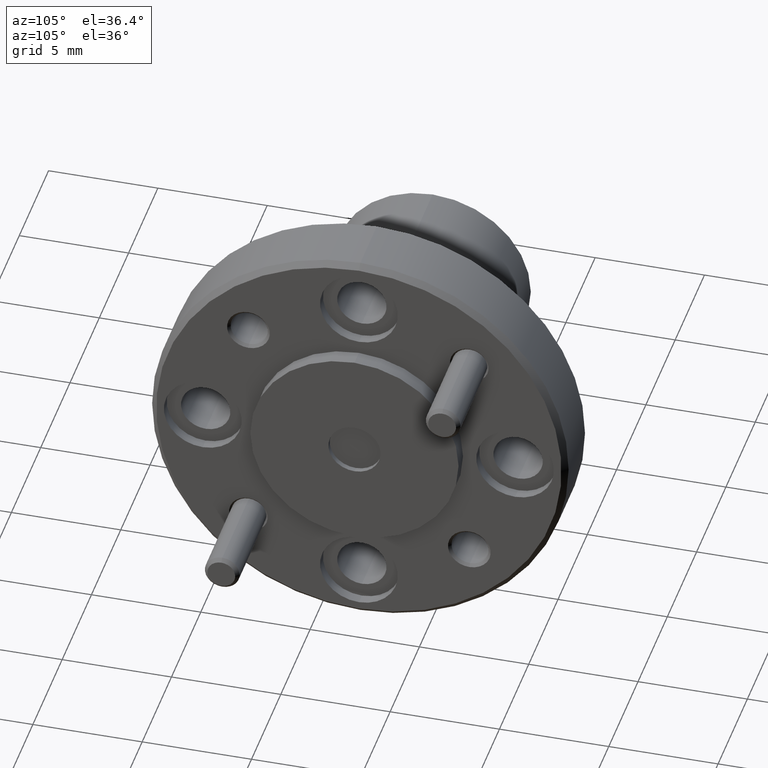
[diagram: clean part render]
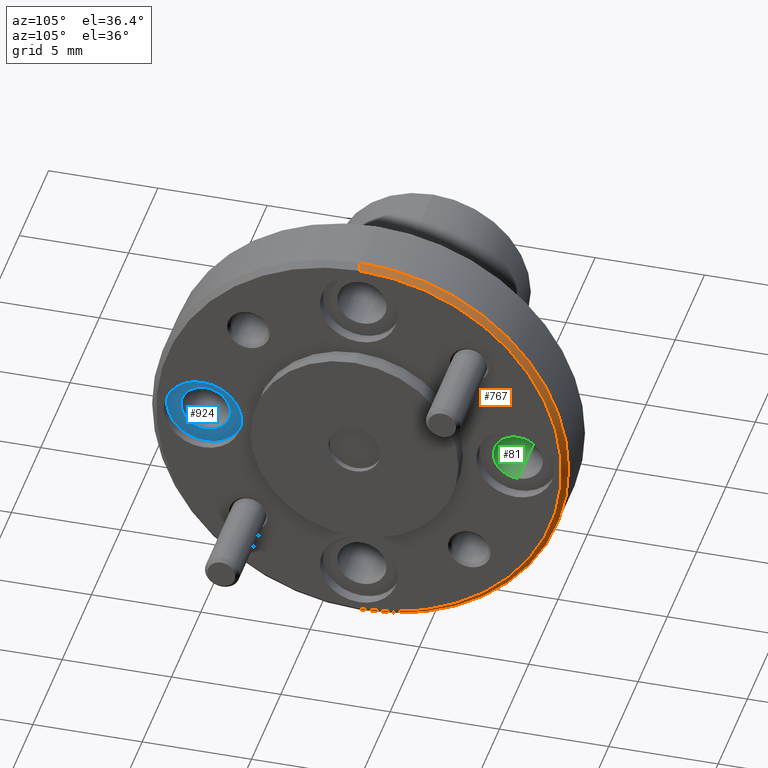
[diagram: same view with three faces highlighted in distinct colors, each labeled with its STEP entity id]
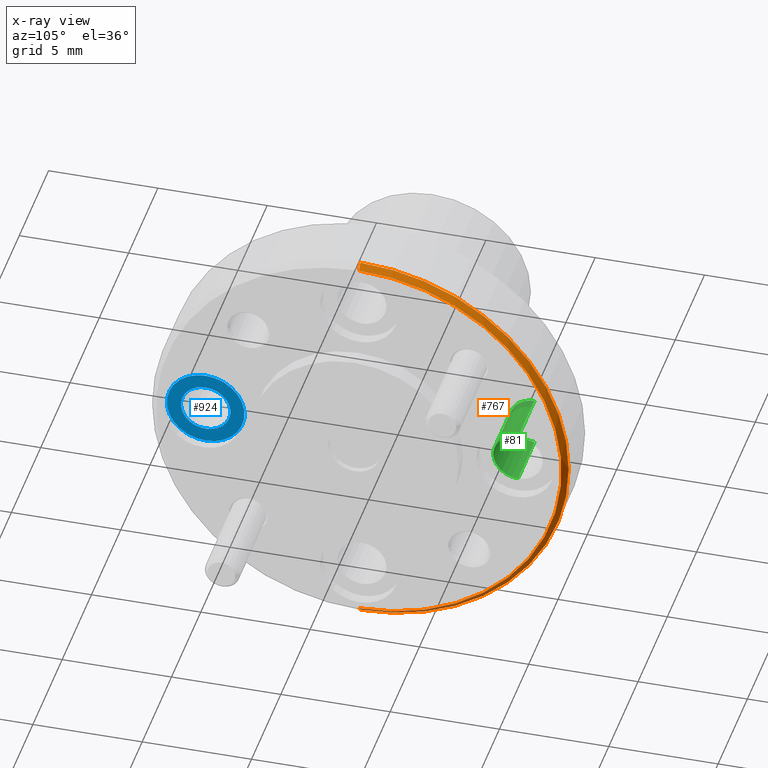
[diagram: x-ray of the same camera — body ghosted, the three highlighted faces saturated]
A machine part, auxiliary view with three faces highlighted in distinct colors.
The next image is the same camera in x-ray (body ghosted, the three faces saturated) — at least one of them is partly hidden behind the body in this view.
Their STEP definitions:

[orange] entity #767 — the highlighted conical surface has half-angle 45 deg.
#30 = CARTESIAN_POINT ( 'NONE',  ( 0.3505151396269433600, 0.4701054730334653400, 0.1041474666369298500 ) ) ;
#109 = DIRECTION ( 'NONE',  ( -1.000000000000000000, 0.0000000000000000000, 0.0000000000000000000 ) ) ;
#127 = CARTESIAN_POINT ( 'NONE',  ( 0.3505151396269433600, 0.4701054730334652800, 0.4691474666369300800 ) ) ;
#254 = DIRECTION ( 'NONE',  ( 0.0000000000000000000, 0.0000000000000000000, 1.000000000000000000 ) ) ;
#259 = AXIS2_PLACEMENT_3D ( 'NONE', #127, #109, #254 ) ;
#277 = CARTESIAN_POINT ( 'NONE',  ( 0.3505151396269433600, 0.4701054730334652800, 0.8341474666369302900 ) ) ;
#294 = CARTESIAN_POINT ( 'NONE',  ( 0.3505151396269433600, 0.4701054730334652800, 0.4691474666369300800 ) ) ;
#311 = CARTESIAN_POINT ( 'NONE',  ( 0.3505151396269433600, 0.4701054730334652800, 0.8341474666369302900 ) ) ;
#442 = DIRECTION ( 'NONE',  ( -0.7071067811865523500, 8.659560562354872500E-017, -0.7071067811865426900 ) ) ;
#484 = VERTEX_POINT ( 'NONE', #30 ) ;
#544 = VECTOR ( 'NONE', #780, 39.37007874015748100 ) ;
#580 = CARTESIAN_POINT ( 'NONE',  ( 0.3405151396269434100, 0.4701054730334652800, 0.09414746663693002200 ) ) ;
#591 = DIRECTION ( 'NONE',  ( 0.0000000000000000000, 0.0000000000000000000, -1.000000000000000000 ) ) ;
#677 = DIRECTION ( 'NONE',  ( 0.0000000000000000000, 0.0000000000000000000, -1.000000000000000000 ) ) ;
#724 = AXIS2_PLACEMENT_3D ( 'NONE', #1639, #988, #677 ) ;
#755 = CARTESIAN_POINT ( 'NONE',  ( 0.3505151396269433600, 0.4701054730334653400, 0.1041474666369298500 ) ) ;
#767 = ADVANCED_FACE ( 'NONE', ( #1160 ), #2056, .T. ) ;
#780 = DIRECTION ( 'NONE',  ( -0.7071067811865523500, 0.0000000000000000000, 0.7071067811865426900 ) ) ;
#840 = ORIENTED_EDGE ( 'NONE', *, *, #1974, .F. ) ;
#933 = CIRCLE ( 'NONE', #724, 0.3750000000000000600 ) ;
#955 = CARTESIAN_POINT ( 'NONE',  ( 0.3405151396269434100, 0.4701054730334653400, 0.8441474666369300800 ) ) ;
#986 = VERTEX_POINT ( 'NONE', #580 ) ;
#988 = DIRECTION ( 'NONE',  ( -1.000000000000000000, 0.0000000000000000000, 0.0000000000000000000 ) ) ;
#1008 = EDGE_LOOP ( 'NONE', ( #1822, #1622, #1048, #840 ) ) ;
#1048 = ORIENTED_EDGE ( 'NONE', *, *, #1307, .F. ) ;
#1079 = VECTOR ( 'NONE', #442, 39.37007874015748100 ) ;
#1098 = EDGE_CURVE ( 'NONE', #484, #986, #1833, .T. ) ;
#1160 = FACE_OUTER_BOUND ( 'NONE', #1008, .T. ) ;
#1307 = EDGE_CURVE ( 'NONE', #2046, #986, #933, .T. ) ;
#1342 = LINE ( 'NONE', #311, #544 ) ;
#1370 = CIRCLE ( 'NONE', #1484, 0.3650000000000002100 ) ;
#1484 = AXIS2_PLACEMENT_3D ( 'NONE', #294, #1718, #591 ) ;
#1622 = ORIENTED_EDGE ( 'NONE', *, *, #1098, .T. ) ;
#1639 = CARTESIAN_POINT ( 'NONE',  ( 0.3405151396269434100, 0.4701054730334652800, 0.4691474666369300800 ) ) ;
#1718 = DIRECTION ( 'NONE',  ( 1.000000000000000000, -0.0000000000000000000, -0.0000000000000000000 ) ) ;
#1822 = ORIENTED_EDGE ( 'NONE', *, *, #1838, .F. ) ;
#1833 = LINE ( 'NONE', #755, #1079 ) ;
#1838 = EDGE_CURVE ( 'NONE', #484, #1925, #1370, .T. ) ;
#1925 = VERTEX_POINT ( 'NONE', #277 ) ;
#1974 = EDGE_CURVE ( 'NONE', #1925, #2046, #1342, .T. ) ;
#2046 = VERTEX_POINT ( 'NONE', #955 ) ;
#2056 = CONICAL_SURFACE ( 'NONE', #259, 0.3650000000000002700, 0.7853981633974415100 ) ;

[blue] entity #924 — the highlighted planar face has unit normal (1, 0, 0).
#66 = CARTESIAN_POINT ( 'NONE',  ( 0.3305151396269433400, 0.1888554730334652300, 0.4691474666369300800 ) ) ;
#115 = PLANE ( 'NONE',  #1560 ) ;
#159 = FACE_BOUND ( 'NONE', #423, .T. ) ;
#186 = EDGE_CURVE ( 'NONE', #1801, #368, #1267, .T. ) ;
#205 = CIRCLE ( 'NONE', #1612, 0.04449999999999969300 ) ;
#209 = ORIENTED_EDGE ( 'NONE', *, *, #1862, .T. ) ;
#368 = VERTEX_POINT ( 'NONE', #2036 ) ;
#401 = DIRECTION ( 'NONE',  ( 0.0000000000000000000, 0.0000000000000000000, -1.000000000000000000 ) ) ;
#423 = EDGE_LOOP ( 'NONE', ( #1166, #587 ) ) ;
#455 = CARTESIAN_POINT ( 'NONE',  ( 0.3305151396269433400, 0.1888554730334652300, 0.4691474666369300800 ) ) ;
#512 = CARTESIAN_POINT ( 'NONE',  ( 0.3305151396269433400, 0.1888554730334652300, 0.5391474666369300300 ) ) ;
#587 = ORIENTED_EDGE ( 'NONE', *, *, #186, .T. ) ;
#686 = DIRECTION ( 'NONE',  ( 0.0000000000000000000, 0.0000000000000000000, -1.000000000000000000 ) ) ;
#708 = DIRECTION ( 'NONE',  ( 0.0000000000000000000, 0.0000000000000000000, -1.000000000000000000 ) ) ;
#710 = ORIENTED_EDGE ( 'NONE', *, *, #1532, .T. ) ;
#738 = CARTESIAN_POINT ( 'NONE',  ( 0.3305151396269433400, 0.1888554730334652300, 0.4691474666369300800 ) ) ;
#841 = AXIS2_PLACEMENT_3D ( 'NONE', #1019, #1202, #708 ) ;
#895 = DIRECTION ( 'NONE',  ( 1.000000000000000000, 0.0000000000000000000, 0.0000000000000000000 ) ) ;
#924 = ADVANCED_FACE ( 'NONE', ( #1292, #159 ), #115, .T. ) ;
#1019 = CARTESIAN_POINT ( 'NONE',  ( 0.3305151396269433400, 0.1888554730334652300, 0.4691474666369300800 ) ) ;
#1127 = AXIS2_PLACEMENT_3D ( 'NONE', #455, #1585, #1575 ) ;
#1140 = CIRCLE ( 'NONE', #1716, 0.07000000000000000700 ) ;
#1166 = ORIENTED_EDGE ( 'NONE', *, *, #1447, .T. ) ;
#1202 = DIRECTION ( 'NONE',  ( -1.000000000000000000, -0.0000000000000000000, -0.0000000000000000000 ) ) ;
#1267 = CIRCLE ( 'NONE', #841, 0.04449999999999969300 ) ;
#1292 = FACE_OUTER_BOUND ( 'NONE', #1684, .T. ) ;
#1323 = VERTEX_POINT ( 'NONE', #512 ) ;
#1346 = DIRECTION ( 'NONE',  ( 1.000000000000000000, 0.0000000000000000000, 0.0000000000000000000 ) ) ;
#1442 = CARTESIAN_POINT ( 'NONE',  ( 0.3305151396269433400, 0.1888554730334652300, 0.5136474666369297300 ) ) ;
#1447 = EDGE_CURVE ( 'NONE', #368, #1801, #205, .T. ) ;
#1532 = EDGE_CURVE ( 'NONE', #1551, #1323, #1140, .T. ) ;
#1551 = VERTEX_POINT ( 'NONE', #1986 ) ;
#1560 = AXIS2_PLACEMENT_3D ( 'NONE', #738, #895, #401 ) ;
#1575 = DIRECTION ( 'NONE',  ( 0.0000000000000000000, 0.0000000000000000000, -1.000000000000000000 ) ) ;
#1585 = DIRECTION ( 'NONE',  ( 1.000000000000000000, 0.0000000000000000000, 0.0000000000000000000 ) ) ;
#1612 = AXIS2_PLACEMENT_3D ( 'NONE', #66, #1970, #1668 ) ;
#1646 = CARTESIAN_POINT ( 'NONE',  ( 0.3305151396269433400, 0.1888554730334652300, 0.4691474666369300800 ) ) ;
#1654 = CIRCLE ( 'NONE', #1127, 0.07000000000000000700 ) ;
#1668 = DIRECTION ( 'NONE',  ( 0.0000000000000000000, 0.0000000000000000000, -1.000000000000000000 ) ) ;
#1684 = EDGE_LOOP ( 'NONE', ( #710, #209 ) ) ;
#1716 = AXIS2_PLACEMENT_3D ( 'NONE', #1646, #1346, #686 ) ;
#1801 = VERTEX_POINT ( 'NONE', #1442 ) ;
#1862 = EDGE_CURVE ( 'NONE', #1323, #1551, #1654, .T. ) ;
#1970 = DIRECTION ( 'NONE',  ( -1.000000000000000000, -0.0000000000000000000, -0.0000000000000000000 ) ) ;
#1986 = CARTESIAN_POINT ( 'NONE',  ( 0.3305151396269433400, 0.1888554730334652300, 0.3991474666369300700 ) ) ;
#2036 = CARTESIAN_POINT ( 'NONE',  ( 0.3305151396269433400, 0.1888554730334652300, 0.4246474666369303700 ) ) ;

[green] entity #81 — the highlighted cylindrical surface (edge-blend (fillet) strip) has radius 1.1303 mm, axis along (1, -0, -0).
#28 = EDGE_CURVE ( 'NONE', #2018, #1992, #334, .T. ) ;
#50 = AXIS2_PLACEMENT_3D ( 'NONE', #1803, #1163, #1145 ) ;
#54 = ORIENTED_EDGE ( 'NONE', *, *, #1939, .F. ) ;
#81 = ADVANCED_FACE ( 'NONE', ( #959 ), #525, .F. ) ;
#135 = CARTESIAN_POINT ( 'NONE',  ( 0.3305151396269433400, 0.7513554730334652800, 0.4246474666369303700 ) ) ;
#148 = EDGE_LOOP ( 'NONE', ( #606, #581, #1227, #54 ) ) ;
#195 = VERTEX_POINT ( 'NONE', #1657 ) ;
#282 = CARTESIAN_POINT ( 'NONE',  ( 0.3305151396269433400, 0.7513554730334652800, 0.4691474666369300800 ) ) ;
#334 = CIRCLE ( 'NONE', #50, 0.04449999999999969300 ) ;
#369 = CARTESIAN_POINT ( 'NONE',  ( 0.3505151396269433600, 0.7513554730334652800, 0.4691474666369300800 ) ) ;
#406 = VERTEX_POINT ( 'NONE', #135 ) ;
#481 = CARTESIAN_POINT ( 'NONE',  ( 0.2205151396269433600, 0.7513554730334652800, 0.5136474666369297300 ) ) ;
#513 = DIRECTION ( 'NONE',  ( 1.000000000000000000, -0.0000000000000000000, -0.0000000000000000000 ) ) ;
#525 = CYLINDRICAL_SURFACE ( 'NONE', #1671, 0.04449999999999969300 ) ;
#581 = ORIENTED_EDGE ( 'NONE', *, *, #1783, .T. ) ;
#606 = ORIENTED_EDGE ( 'NONE', *, *, #28, .T. ) ;
#611 = DIRECTION ( 'NONE',  ( -1.000000000000000000, -0.0000000000000000000, -0.0000000000000000000 ) ) ;
#673 = CIRCLE ( 'NONE', #1357, 0.04449999999999969300 ) ;
#823 = EDGE_CURVE ( 'NONE', #406, #195, #673, .T. ) ;
#932 = CARTESIAN_POINT ( 'NONE',  ( 0.2205151396269433600, 0.7513554730334652800, 0.4246474666369303700 ) ) ;
#959 = FACE_OUTER_BOUND ( 'NONE', #148, .T. ) ;
#1054 = CARTESIAN_POINT ( 'NONE',  ( 0.3505151396269433600, 0.7513554730334652800, 0.5136474666369297300 ) ) ;
#1145 = DIRECTION ( 'NONE',  ( 0.0000000000000000000, 0.0000000000000000000, 1.000000000000000000 ) ) ;
#1163 = DIRECTION ( 'NONE',  ( -1.000000000000000000, 0.0000000000000000000, 0.0000000000000000000 ) ) ;
#1186 = VECTOR ( 'NONE', #1914, 39.37007874015748100 ) ;
#1227 = ORIENTED_EDGE ( 'NONE', *, *, #823, .F. ) ;
#1357 = AXIS2_PLACEMENT_3D ( 'NONE', #282, #611, #1739 ) ;
#1388 = DIRECTION ( 'NONE',  ( 1.000000000000000000, -0.0000000000000000000, -0.0000000000000000000 ) ) ;
#1446 = CARTESIAN_POINT ( 'NONE',  ( 0.3505151396269433600, 0.7513554730334652800, 0.4246474666369303700 ) ) ;
#1492 = DIRECTION ( 'NONE',  ( 0.0000000000000000000, 0.0000000000000000000, -1.000000000000000000 ) ) ;
#1518 = VECTOR ( 'NONE', #1388, 39.37007874015748100 ) ;
#1562 = LINE ( 'NONE', #1054, #1518 ) ;
#1657 = CARTESIAN_POINT ( 'NONE',  ( 0.3305151396269433400, 0.7513554730334652800, 0.5136474666369297300 ) ) ;
#1671 = AXIS2_PLACEMENT_3D ( 'NONE', #369, #513, #1492 ) ;
#1677 = LINE ( 'NONE', #1446, #1186 ) ;
#1739 = DIRECTION ( 'NONE',  ( 0.0000000000000000000, 0.0000000000000000000, -1.000000000000000000 ) ) ;
#1783 = EDGE_CURVE ( 'NONE', #1992, #195, #1562, .T. ) ;
#1803 = CARTESIAN_POINT ( 'NONE',  ( 0.2205151396269433600, 0.7513554730334652800, 0.4691474666369300800 ) ) ;
#1914 = DIRECTION ( 'NONE',  ( 1.000000000000000000, -0.0000000000000000000, -0.0000000000000000000 ) ) ;
#1939 = EDGE_CURVE ( 'NONE', #2018, #406, #1677, .T. ) ;
#1992 = VERTEX_POINT ( 'NONE', #481 ) ;
#2018 = VERTEX_POINT ( 'NONE', #932 ) ;